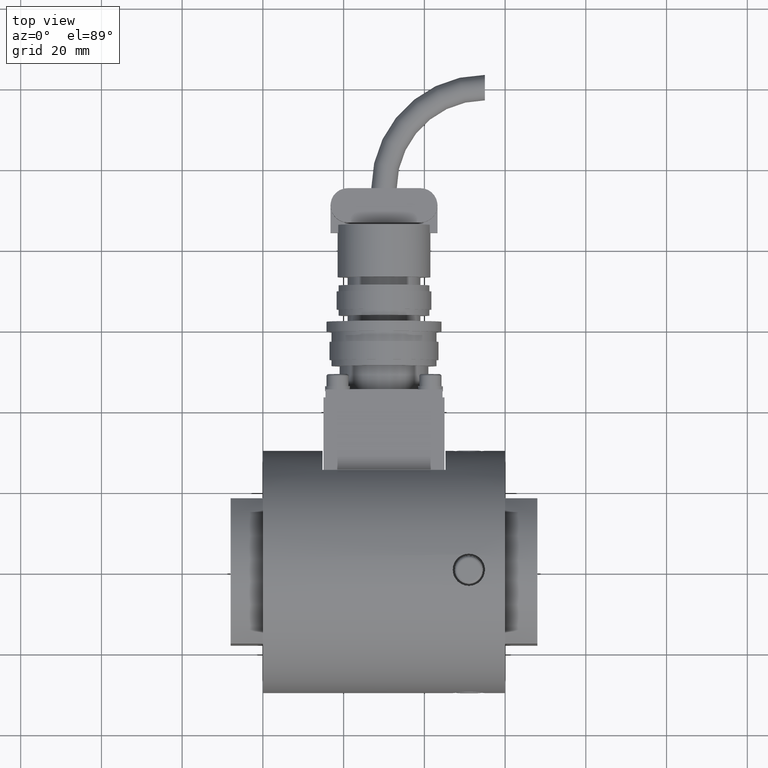
[diagram: clean part render]
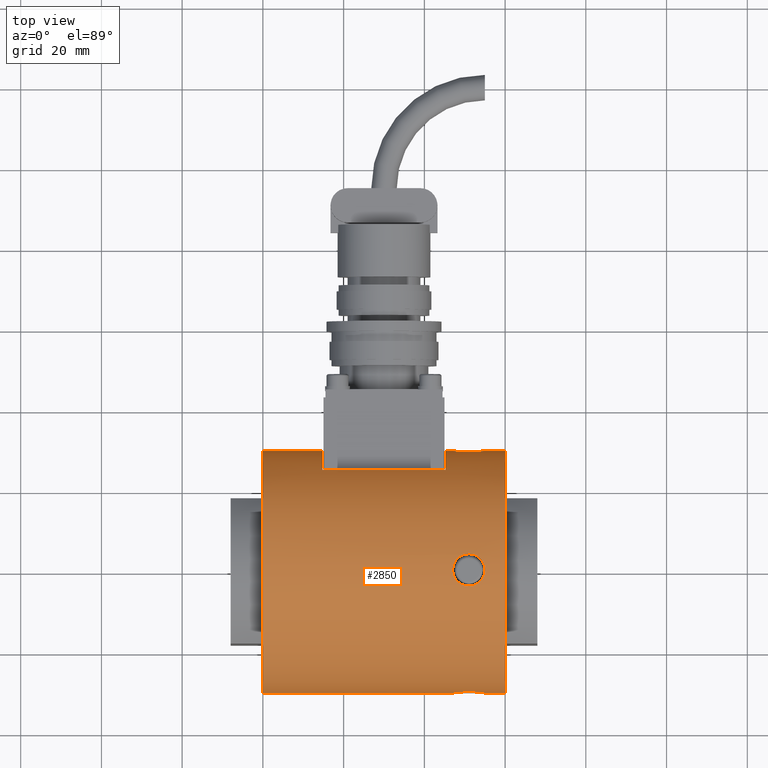
[diagram: same view with one face highlighted and labeled with its STEP entity id]
A machine part, top view. The second image highlights one B-rep face of the part: STEP entity #2850.
In plain terms, the highlighted cylindrical surface (partial cylindrical patch) has radius 30 mm, axis along (-1, 0, 0).
Its self-contained STEP definition (entity closure, byte-faithful):
#2573=CARTESIAN_POINT('',(-4.0,-5.0,0.0));
#2574=DIRECTION('',(1.0,0.0,0.0));
#2575=DIRECTION('',(0.0,1.0,0.0));
#2576=AXIS2_PLACEMENT_3D('',#2573,#2574,#2575);
#2577=CYLINDRICAL_SURFACE('',#2576,30.0);
#2578=CARTESIAN_POINT('',(26.0,25.0,0.0));
#2579=VERTEX_POINT('',#2578);
#2580=CARTESIAN_POINT('',(11.249999999999996,25.0,0.0));
#2581=VERTEX_POINT('',#2580);
#2582=CARTESIAN_POINT('',(26.0,25.0,0.0));
#2583=DIRECTION('',(-1.0,0.0,0.0));
#2584=VECTOR('',#2583,14.750000000000004);
#2585=LINE('',#2582,#2584);
#2586=EDGE_CURVE('',#2579,#2581,#2585,.T.);
#2587=ORIENTED_EDGE('',*,*,#2586,.F.);
#2588=CARTESIAN_POINT('',(26.0,-35.0,-3.673819E-015));
#2589=VERTEX_POINT('',#2588);
#2590=CARTESIAN_POINT('',(26.0,-5.0,0.0));
#2591=DIRECTION('',(1.0,0.0,0.0));
#2592=DIRECTION('',(0.0,1.0,0.0));
#2593=AXIS2_PLACEMENT_3D('',#2590,#2591,#2592);
#2594=CIRCLE('',#2593,30.0);
#2595=EDGE_CURVE('',#2589,#2579,#2594,.T.);
#2596=ORIENTED_EDGE('',*,*,#2595,.F.);
#2597=CARTESIAN_POINT('',(-21.0,-35.0,-3.673940E-015));
#2598=VERTEX_POINT('',#2597);
#2599=CARTESIAN_POINT('',(26.0,-35.0,-3.673819E-015));
#2600=DIRECTION('',(-1.0,0.0,0.0));
#2601=VECTOR('',#2600,47.0);
#2602=LINE('',#2599,#2601);
#2603=EDGE_CURVE('',#2589,#2598,#2602,.T.);
#2604=ORIENTED_EDGE('',*,*,#2603,.T.);
#2605=CARTESIAN_POINT('',(-25.0,-34.732137494637016,-4.000000000000004));
#2606=VERTEX_POINT('',#2605);
#2607=CARTESIAN_POINT('',(-21.0,-35.0,-3.673940E-015));
#2608=CARTESIAN_POINT('',(-21.0,-35.0,-0.251444888649450));
#2609=CARTESIAN_POINT('',(-21.024091279223551,-34.996755240982303,-0.511383157657885));
#2610=CARTESIAN_POINT('',(-21.125465439016391,-34.983487003611309,-1.028272738920402));
#2611=CARTESIAN_POINT('',(-21.202725594924559,-34.973472053691488,-1.285228726637181));
#2612=CARTESIAN_POINT('',(-21.406926518888099,-34.948287281952801,-1.777900085725493));
#2613=CARTESIAN_POINT('',(-21.534029764993914,-34.933119830535638,-2.014013514728858));
#2614=CARTESIAN_POINT('',(-21.827642899419740,-34.900544521686619,-2.450581672475367));
#2615=CARTESIAN_POINT('',(-21.994171804720388,-34.883169414439394,-2.651026054212772));
#2616=CARTESIAN_POINT('',(-22.348975868248534,-34.849568495770548,-3.005830117740918));
#2617=CARTESIAN_POINT('',(-22.549421137299078,-34.832163113590582,-3.172359231084946));
#2618=CARTESIAN_POINT('',(-22.985988715808144,-34.799477524410761,-3.465971494351082));
#2619=CARTESIAN_POINT('',(-23.222100676171834,-34.784230825182100,-3.593073760987271));
#2620=CARTESIAN_POINT('',(-23.714769203836191,-34.758886040934350,-3.797273583217749));
#2621=CARTESIAN_POINT('',(-23.971723860490386,-34.748791621607801,-3.874533649912399));
#2622=CARTESIAN_POINT('',(-24.488613100838485,-34.735412687373675,-3.975908231112524));
#2623=CARTESIAN_POINT('',(-24.748552386490626,-34.732137494637016,-4.000000000000004));
#2624=CARTESIAN_POINT('',(-25.0,-34.732137494637016,-4.000000000000004));
#2625=B_SPLINE_CURVE_WITH_KNOTS('',3,(#2607,#2608,#2609,#2610,#2611,#2612,#2613,#2614,#2615,#2616,#2617,#2618,#2619,#2620,#2621,#2622,#2623,#2624),.UNSPECIFIED.,.F.,.U.,(4,2,2,2,2,2,2,2,4),(6.034710025905850,6.789044691854189,7.543379357802526,8.297714023750864,9.052048689699202,9.806391530227327,10.560734370755451,11.315077211283576,12.069420051811701),.UNSPECIFIED.);
#2626=EDGE_CURVE('',#2598,#2606,#2625,.T.);
#2627=ORIENTED_EDGE('',*,*,#2626,.T.);
#2628=CARTESIAN_POINT('',(-29.0,-35.0,-3.673940E-015));
#2629=VERTEX_POINT('',#2628);
#2630=CARTESIAN_POINT('',(-25.0,-34.732137494637016,-4.000000000000004));
#2631=CARTESIAN_POINT('',(-25.251447613509374,-34.732137494637016,-4.000000000000004));
#2632=CARTESIAN_POINT('',(-25.511386899161522,-34.735412687373675,-3.975908231112523));
#2633=CARTESIAN_POINT('',(-26.028276139509622,-34.748791621607801,-3.874533649912397));
#2634=CARTESIAN_POINT('',(-26.285230796163809,-34.758886040934350,-3.797273583217749));
#2635=CARTESIAN_POINT('',(-26.777899323828169,-34.784230825182107,-3.593073760987271));
#2636=CARTESIAN_POINT('',(-27.014011284191859,-34.799477524410754,-3.465971494351081));
#2637=CARTESIAN_POINT('',(-27.450578862700922,-34.832163113590575,-3.172359231084946));
#2638=CARTESIAN_POINT('',(-27.651024131751463,-34.849568495770555,-3.005830117740919));
#2639=CARTESIAN_POINT('',(-28.005828195279609,-34.883169414439401,-2.651026054212773));
#2640=CARTESIAN_POINT('',(-28.172357100580260,-34.900544521686619,-2.450581672475368));
#2641=CARTESIAN_POINT('',(-28.465970235006086,-34.933119830535638,-2.014013514728857));
#2642=CARTESIAN_POINT('',(-28.593073481111901,-34.948287281952808,-1.777900085725492));
#2643=CARTESIAN_POINT('',(-28.797274405075441,-34.973472053691488,-1.285228726637179));
#2644=CARTESIAN_POINT('',(-28.874534560983612,-34.983487003611302,-1.028272738920403));
#2645=CARTESIAN_POINT('',(-28.975908720776452,-34.996755240982296,-0.511383157657888));
#2646=CARTESIAN_POINT('',(-29.0,-35.0,-0.251444888649450));
#2647=CARTESIAN_POINT('',(-29.0,-35.0,-3.673940E-015));
#2648=B_SPLINE_CURVE_WITH_KNOTS('',3,(#2630,#2631,#2632,#2633,#2634,#2635,#2636,#2637,#2638,#2639,#2640,#2641,#2642,#2643,#2644,#2645,#2646,#2647),.UNSPECIFIED.,.F.,.U.,(4,2,2,2,2,2,2,2,4),(12.069420051811701,12.823762892339825,13.578105732867948,14.332448573396071,15.086791413924196,15.841126079872534,16.595460745820873,17.349795411769207,18.104130077717546),.UNSPECIFIED.);
#2649=EDGE_CURVE('',#2606,#2629,#2648,.T.);
#2650=ORIENTED_EDGE('',*,*,#2649,.T.);
#2651=CARTESIAN_POINT('',(-34.0,-35.0,-3.673819E-015));
#2652=VERTEX_POINT('',#2651);
#2653=CARTESIAN_POINT('',(-29.0,-35.0,-3.673940E-015));
#2654=DIRECTION('',(-1.0,0.0,0.0));
#2655=VECTOR('',#2654,5.0);
#2656=LINE('',#2653,#2655);
#2657=EDGE_CURVE('',#2629,#2652,#2656,.T.);
#2658=ORIENTED_EDGE('',*,*,#2657,.T.);
#2659=CARTESIAN_POINT('',(-34.0,25.0,0.0));
#2660=VERTEX_POINT('',#2659);
#2661=CARTESIAN_POINT('',(-34.0,-5.0,0.0));
#2662=DIRECTION('',(1.0,0.0,0.0));
#2663=DIRECTION('',(0.0,1.0,0.0));
#2664=AXIS2_PLACEMENT_3D('',#2661,#2662,#2663);
#2665=CIRCLE('',#2664,30.0);
#2666=EDGE_CURVE('',#2652,#2660,#2665,.T.);
#2667=ORIENTED_EDGE('',*,*,#2666,.T.);
#2668=CARTESIAN_POINT('',(-29.0,25.0,0.0));
#2669=VERTEX_POINT('',#2668);
#2670=CARTESIAN_POINT('',(-29.0,25.0,0.0));
#2671=DIRECTION('',(-1.0,0.0,0.0));
#2672=VECTOR('',#2671,5.0);
#2673=LINE('',#2670,#2672);
#2674=EDGE_CURVE('',#2669,#2660,#2673,.T.);
#2675=ORIENTED_EDGE('',*,*,#2674,.F.);
#2676=CARTESIAN_POINT('',(-25.0,24.732137494637009,-4.0));
#2677=VERTEX_POINT('',#2676);
#2678=CARTESIAN_POINT('',(-29.0,25.0,0.0));
#2679=CARTESIAN_POINT('',(-29.0,25.0,-0.251444888649446));
#2680=CARTESIAN_POINT('',(-28.975908720776452,24.996755240982303,-0.511383157657883));
#2681=CARTESIAN_POINT('',(-28.874534560983612,24.983487003611309,-1.028272738920397));
#2682=CARTESIAN_POINT('',(-28.797274405075441,24.973472053691488,-1.285228726637173));
#2683=CARTESIAN_POINT('',(-28.593073481111908,24.948287281952808,-1.777900085725486));
#2684=CARTESIAN_POINT('',(-28.465970235006093,24.933119830535642,-2.014013514728847));
#2685=CARTESIAN_POINT('',(-28.172357100580268,24.900544521686616,-2.450581672475359));
#2686=CARTESIAN_POINT('',(-28.005828195279612,24.883169414439401,-2.651026054212766));
#2687=CARTESIAN_POINT('',(-27.651024131751470,24.849568495770548,-3.005830117740912));
#2688=CARTESIAN_POINT('',(-27.450578862700926,24.832163113590582,-3.172359231084940));
#2689=CARTESIAN_POINT('',(-27.014011284191856,24.799477524410754,-3.465971494351078));
#2690=CARTESIAN_POINT('',(-26.777899323828173,24.784230825182107,-3.593073760987265));
#2691=CARTESIAN_POINT('',(-26.285230796163816,24.758886040934353,-3.797273583217743));
#2692=CARTESIAN_POINT('',(-26.028276139509625,24.748791621607801,-3.874533649912392));
#2693=CARTESIAN_POINT('',(-25.511386899161518,24.735412687373675,-3.975908231112520));
#2694=CARTESIAN_POINT('',(-25.251447613509377,24.732137494637009,-4.0));
#2695=CARTESIAN_POINT('',(-25.0,24.732137494637009,-4.0));
#2696=B_SPLINE_CURVE_WITH_KNOTS('',3,(#2678,#2679,#2680,#2681,#2682,#2683,#2684,#2685,#2686,#2687,#2688,#2689,#2690,#2691,#2692,#2693,#2694,#2695),.UNSPECIFIED.,.F.,.U.,(4,2,2,2,2,2,2,2,4),(18.104130077717546,18.858464743665884,19.612799409614219,20.367134075562557,21.121468741510895,21.875811582039020,22.630154422567145,23.384497263095270,24.138840103623398),.UNSPECIFIED.);
#2697=EDGE_CURVE('',#2669,#2677,#2696,.T.);
#2698=ORIENTED_EDGE('',*,*,#2697,.T.);
#2699=CARTESIAN_POINT('',(-21.0,25.0,0.0));
#2700=VERTEX_POINT('',#2699);
#2701=CARTESIAN_POINT('',(-25.0,24.732137494637009,-4.0));
#2702=CARTESIAN_POINT('',(-24.748552386490626,24.732137494637009,-4.0));
#2703=CARTESIAN_POINT('',(-24.488613100838485,24.735412687373675,-3.975908231112520));
#2704=CARTESIAN_POINT('',(-23.971723860490386,24.748791621607801,-3.874533649912395));
#2705=CARTESIAN_POINT('',(-23.714769203836191,24.758886040934357,-3.797273583217746));
#2706=CARTESIAN_POINT('',(-23.222100676171834,24.784230825182107,-3.593073760987267));
#2707=CARTESIAN_POINT('',(-22.985988715808144,24.799477524410754,-3.465971494351078));
#2708=CARTESIAN_POINT('',(-22.549421137299078,24.832163113590582,-3.172359231084942));
#2709=CARTESIAN_POINT('',(-22.348975868248534,24.849568495770548,-3.005830117740915));
#2710=CARTESIAN_POINT('',(-21.994171804720388,24.883169414439404,-2.651026054212770));
#2711=CARTESIAN_POINT('',(-21.827642899419740,24.900544521686616,-2.450581672475364));
#2712=CARTESIAN_POINT('',(-21.534029764993914,24.933119830535642,-2.014013514728855));
#2713=CARTESIAN_POINT('',(-21.406926518888103,24.948287281952808,-1.777900085725492));
#2714=CARTESIAN_POINT('',(-21.202725594924562,24.973472053691488,-1.285228726637178));
#2715=CARTESIAN_POINT('',(-21.125465439016388,24.983487003611305,-1.028272738920401));
#2716=CARTESIAN_POINT('',(-21.024091279223548,24.996755240982299,-0.511383157657884));
#2717=CARTESIAN_POINT('',(-21.0,25.0,-0.251444888649446));
#2718=CARTESIAN_POINT('',(-21.0,25.0,0.0));
#2719=B_SPLINE_CURVE_WITH_KNOTS('',3,(#2701,#2702,#2703,#2704,#2705,#2706,#2707,#2708,#2709,#2710,#2711,#2712,#2713,#2714,#2715,#2716,#2717,#2718),.UNSPECIFIED.,.F.,.U.,(4,2,2,2,2,2,2,2,4),(24.138840103623398,24.893182944151523,25.647525784679647,26.401868625207772,27.156211465735897,27.910546131684235,28.664880797632570,29.419215463580912,30.173550129529247),.UNSPECIFIED.);
#2720=EDGE_CURVE('',#2677,#2700,#2719,.T.);
#2721=ORIENTED_EDGE('',*,*,#2720,.T.);
#2722=CARTESIAN_POINT('',(-19.250000000000000,25.0,0.0));
#2723=VERTEX_POINT('',#2722);
#2724=CARTESIAN_POINT('',(-19.250000000000000,25.0,0.0));
#2725=DIRECTION('',(-1.0,0.0,0.0));
#2726=VECTOR('',#2725,1.750000000000000);
#2727=LINE('',#2724,#2726);
#2728=EDGE_CURVE('',#2723,#2700,#2727,.T.);
#2729=ORIENTED_EDGE('',*,*,#2728,.F.);
#2730=CARTESIAN_POINT('',(-19.250000000000000,20.0,-16.583123951777001));
#2731=VERTEX_POINT('',#2730);
#2732=CARTESIAN_POINT('',(-19.250000000000000,-5.0,0.0));
#2733=DIRECTION('',(-1.0,0.0,0.0));
#2734=DIRECTION('',(0.0,1.0,0.0));
#2735=AXIS2_PLACEMENT_3D('',#2732,#2733,#2734);
#2736=CIRCLE('',#2735,30.0);
#2737=EDGE_CURVE('',#2723,#2731,#2736,.T.);
#2738=ORIENTED_EDGE('',*,*,#2737,.T.);
#2739=CARTESIAN_POINT('',(11.250000000000000,20.0,-16.583123951777001));
#2740=VERTEX_POINT('',#2739);
#2741=CARTESIAN_POINT('',(-19.250000000000000,20.0,-16.583123951777001));
#2742=DIRECTION('',(1.0,0.0,0.0));
#2743=VECTOR('',#2742,30.500000000000000);
#2744=LINE('',#2741,#2743);
#2745=EDGE_CURVE('',#2731,#2740,#2744,.T.);
#2746=ORIENTED_EDGE('',*,*,#2745,.T.);
#2747=CARTESIAN_POINT('',(11.250000000000000,-5.0,0.0));
#2748=DIRECTION('',(1.0,0.0,0.0));
#2749=DIRECTION('',(0.0,1.0,0.0));
#2750=AXIS2_PLACEMENT_3D('',#2747,#2748,#2749);
#2751=CIRCLE('',#2750,30.0);
#2752=EDGE_CURVE('',#2740,#2581,#2751,.T.);
#2753=ORIENTED_EDGE('',*,*,#2752,.T.);
#2754=EDGE_LOOP('',(#2587,#2596,#2604,#2627,#2650,#2658,#2667,#2675,#2698,#2721,#2729,#2738,#2746,#2753));
#2755=FACE_OUTER_BOUND('',#2754,.T.);
#2756=CARTESIAN_POINT('',(-21.0,-4.999999999999993,-30.0));
#2757=VERTEX_POINT('',#2756);
#2758=CARTESIAN_POINT('',(-25.0,-0.999999999999995,-29.732137494637009));
#2759=VERTEX_POINT('',#2758);
#2760=CARTESIAN_POINT('',(-21.0,-4.999999999999993,-30.0));
#2761=CARTESIAN_POINT('',(-21.0,-4.748555111350547,-30.0));
#2762=CARTESIAN_POINT('',(-21.024091279223548,-4.488616842342110,-29.996755240982303));
#2763=CARTESIAN_POINT('',(-21.125465439016388,-3.971727261079594,-29.983487003611309));
#2764=CARTESIAN_POINT('',(-21.202725594924562,-3.714771273362818,-29.973472053691488));
#2765=CARTESIAN_POINT('',(-21.406926518888103,-3.222099914274504,-29.948287281952808));
#2766=CARTESIAN_POINT('',(-21.534029764993917,-2.985986485271139,-29.933119830535645));
#2767=CARTESIAN_POINT('',(-21.827642899419743,-2.549418327524630,-29.900544521686619));
#2768=CARTESIAN_POINT('',(-21.994171804720388,-2.348973945787225,-29.883169414439401));
#2769=CARTESIAN_POINT('',(-22.348975868248534,-1.994169882259079,-29.849568495770548));
#2770=CARTESIAN_POINT('',(-22.549421137299085,-1.827640768915048,-29.832163113590582));
#2771=CARTESIAN_POINT('',(-22.985988715808148,-1.534028505648914,-29.799477524410754));
#2772=CARTESIAN_POINT('',(-23.222100676171827,-1.406926239012730,-29.784230825182107));
#2773=CARTESIAN_POINT('',(-23.714769203836187,-1.202726416782251,-29.758886040934357));
#2774=CARTESIAN_POINT('',(-23.971723860490378,-1.125466350087602,-29.748791621607801));
#2775=CARTESIAN_POINT('',(-24.488613100838482,-1.024091768887475,-29.735412687373675));
#2776=CARTESIAN_POINT('',(-24.748552386490626,-0.999999999999995,-29.732137494637009));
#2777=CARTESIAN_POINT('',(-25.0,-0.999999999999995,-29.732137494637009));
#2778=B_SPLINE_CURVE_WITH_KNOTS('',3,(#2760,#2761,#2762,#2763,#2764,#2765,#2766,#2767,#2768,#2769,#2770,#2771,#2772,#2773,#2774,#2775,#2776,#2777),.UNSPECIFIED.,.F.,.U.,(4,2,2,2,2,2,2,2,4),(6.034710025905850,6.789044691854188,7.543379357802525,8.297714023750864,9.052048689699200,9.806391530227327,10.560734370755451,11.315077211283576,12.069420051811701),.UNSPECIFIED.);
#2779=EDGE_CURVE('',#2757,#2759,#2778,.T.);
#2780=ORIENTED_EDGE('',*,*,#2779,.T.);
#2781=CARTESIAN_POINT('',(-29.0,-4.999999999999993,-30.0));
#2782=VERTEX_POINT('',#2781);
#2783=CARTESIAN_POINT('',(-25.0,-0.999999999999995,-29.732137494637009));
#2784=CARTESIAN_POINT('',(-25.251447613509374,-0.999999999999995,-29.732137494637009));
#2785=CARTESIAN_POINT('',(-25.511386899161515,-1.024091768887475,-29.735412687373675));
#2786=CARTESIAN_POINT('',(-26.028276139509614,-1.125466350087600,-29.748791621607801));
#2787=CARTESIAN_POINT('',(-26.285230796163809,-1.202726416782249,-29.758886040934357));
#2788=CARTESIAN_POINT('',(-26.777899323828166,-1.406926239012728,-29.784230825182107));
#2789=CARTESIAN_POINT('',(-27.014011284191856,-1.534028505648916,-29.799477524410754));
#2790=CARTESIAN_POINT('',(-27.450578862700922,-1.827640768915052,-29.832163113590582));
#2791=CARTESIAN_POINT('',(-27.651024131751466,-1.994169882259079,-29.849568495770548));
#2792=CARTESIAN_POINT('',(-28.005828195279612,-2.348973945787225,-29.883169414439404));
#2793=CARTESIAN_POINT('',(-28.172357100580260,-2.549418327524631,-29.900544521686616));
#2794=CARTESIAN_POINT('',(-28.465970235006086,-2.985986485271140,-29.933119830535642));
#2795=CARTESIAN_POINT('',(-28.593073481111901,-3.222099914274504,-29.948287281952808));
#2796=CARTESIAN_POINT('',(-28.797274405075441,-3.714771273362818,-29.973472053691488));
#2797=CARTESIAN_POINT('',(-28.874534560983609,-3.971727261079597,-29.983487003611309));
#2798=CARTESIAN_POINT('',(-28.975908720776449,-4.488616842342113,-29.996755240982303));
#2799=CARTESIAN_POINT('',(-29.0,-4.748555111350547,-30.0));
#2800=CARTESIAN_POINT('',(-29.0,-4.999999999999993,-30.0));
#2801=B_SPLINE_CURVE_WITH_KNOTS('',3,(#2783,#2784,#2785,#2786,#2787,#2788,#2789,#2790,#2791,#2792,#2793,#2794,#2795,#2796,#2797,#2798,#2799,#2800),.UNSPECIFIED.,.F.,.U.,(4,2,2,2,2,2,2,2,4),(12.069420051811701,12.823762892339825,13.578105732867950,14.332448573396075,15.086791413924200,15.841126079872536,16.595460745820873,17.349795411769211,18.104130077717549),.UNSPECIFIED.);
#2802=EDGE_CURVE('',#2759,#2782,#2801,.T.);
#2803=ORIENTED_EDGE('',*,*,#2802,.T.);
#2804=CARTESIAN_POINT('',(-25.0,-8.999999999999995,-29.732137494637009));
#2805=VERTEX_POINT('',#2804);
#2806=CARTESIAN_POINT('',(-29.0,-4.999999999999993,-30.0));
#2807=CARTESIAN_POINT('',(-29.0,-5.251444888649440,-30.0));
#2808=CARTESIAN_POINT('',(-28.975908720776452,-5.511383157657878,-29.996755240982303));
#2809=CARTESIAN_POINT('',(-28.874534560983612,-6.028272738920396,-29.983487003611309));
#2810=CARTESIAN_POINT('',(-28.797274405075438,-6.285228726637173,-29.973472053691488));
#2811=CARTESIAN_POINT('',(-28.593073481111894,-6.777900085725484,-29.948287281952808));
#2812=CARTESIAN_POINT('',(-28.465970235006086,-7.014013514728849,-29.933119830535642));
#2813=CARTESIAN_POINT('',(-28.172357100580264,-7.450581672475355,-29.900544521686616));
#2814=CARTESIAN_POINT('',(-28.005828195279612,-7.651026054212764,-29.883169414439401));
#2815=CARTESIAN_POINT('',(-27.651024131751466,-8.005830117740910,-29.849568495770548));
#2816=CARTESIAN_POINT('',(-27.450578862700922,-8.172359231084936,-29.832163113590582));
#2817=CARTESIAN_POINT('',(-27.014011284191856,-8.465971494351072,-29.799477524410754));
#2818=CARTESIAN_POINT('',(-26.777899323828166,-8.593073760987259,-29.784230825182107));
#2819=CARTESIAN_POINT('',(-26.285230796163809,-8.797273583217740,-29.758886040934357));
#2820=CARTESIAN_POINT('',(-26.028276139509614,-8.874533649912390,-29.748791621607801));
#2821=CARTESIAN_POINT('',(-25.511386899161515,-8.975908231112516,-29.735412687373675));
#2822=CARTESIAN_POINT('',(-25.251447613509374,-8.999999999999995,-29.732137494637009));
#2823=CARTESIAN_POINT('',(-25.0,-8.999999999999995,-29.732137494637009));
#2824=B_SPLINE_CURVE_WITH_KNOTS('',3,(#2806,#2807,#2808,#2809,#2810,#2811,#2812,#2813,#2814,#2815,#2816,#2817,#2818,#2819,#2820,#2821,#2822,#2823),.UNSPECIFIED.,.F.,.U.,(4,2,2,2,2,2,2,2,4),(18.104130077717549,18.858464743665888,19.612799409614226,20.367134075562561,21.121468741510899,21.875811582039024,22.630154422567148,23.384497263095273,24.138840103623398),.UNSPECIFIED.);
#2825=EDGE_CURVE('',#2782,#2805,#2824,.T.);
#2826=ORIENTED_EDGE('',*,*,#2825,.T.);
#2827=CARTESIAN_POINT('',(-25.0,-8.999999999999995,-29.732137494637009));
#2828=CARTESIAN_POINT('',(-24.748552386490626,-8.999999999999995,-29.732137494637009));
#2829=CARTESIAN_POINT('',(-24.488613100838485,-8.975908231112516,-29.735412687373675));
#2830=CARTESIAN_POINT('',(-23.971723860490386,-8.874533649912390,-29.748791621607801));
#2831=CARTESIAN_POINT('',(-23.714769203836191,-8.797273583217740,-29.758886040934357));
#2832=CARTESIAN_POINT('',(-23.222100676171834,-8.593073760987259,-29.784230825182107));
#2833=CARTESIAN_POINT('',(-22.985988715808144,-8.465971494351072,-29.799477524410754));
#2834=CARTESIAN_POINT('',(-22.549421137299078,-8.172359231084936,-29.832163113590582));
#2835=CARTESIAN_POINT('',(-22.348975868248534,-8.005830117740910,-29.849568495770548));
#2836=CARTESIAN_POINT('',(-21.994171804720388,-7.651026054212764,-29.883169414439401));
#2837=CARTESIAN_POINT('',(-21.827642899419740,-7.450581672475358,-29.900544521686616));
#2838=CARTESIAN_POINT('',(-21.534029764993914,-7.014013514728849,-29.933119830535642));
#2839=CARTESIAN_POINT('',(-21.406926518888103,-6.777900085725485,-29.948287281952808));
#2840=CARTESIAN_POINT('',(-21.202725594924562,-6.285228726637172,-29.973472053691488));
#2841=CARTESIAN_POINT('',(-21.125465439016388,-6.028272738920395,-29.983487003611305));
#2842=CARTESIAN_POINT('',(-21.024091279223548,-5.511383157657878,-29.996755240982299));
#2843=CARTESIAN_POINT('',(-21.0,-5.251444888649439,-30.0));
#2844=CARTESIAN_POINT('',(-21.0,-4.999999999999993,-30.0));
#2845=B_SPLINE_CURVE_WITH_KNOTS('',3,(#2827,#2828,#2829,#2830,#2831,#2832,#2833,#2834,#2835,#2836,#2837,#2838,#2839,#2840,#2841,#2842,#2843,#2844),.UNSPECIFIED.,.F.,.U.,(4,2,2,2,2,2,2,2,4),(24.138840103623398,24.893182944151523,25.647525784679647,26.401868625207772,27.156211465735897,27.910546131684235,28.664880797632573,29.419215463580912,30.173550129529247),.UNSPECIFIED.);
#2846=EDGE_CURVE('',#2805,#2757,#2845,.T.);
#2847=ORIENTED_EDGE('',*,*,#2846,.T.);
#2848=EDGE_LOOP('',(#2780,#2803,#2826,#2847));
#2849=FACE_BOUND('',#2848,.T.);
#2850=ADVANCED_FACE('',(#2755,#2849),#2577,.T.);